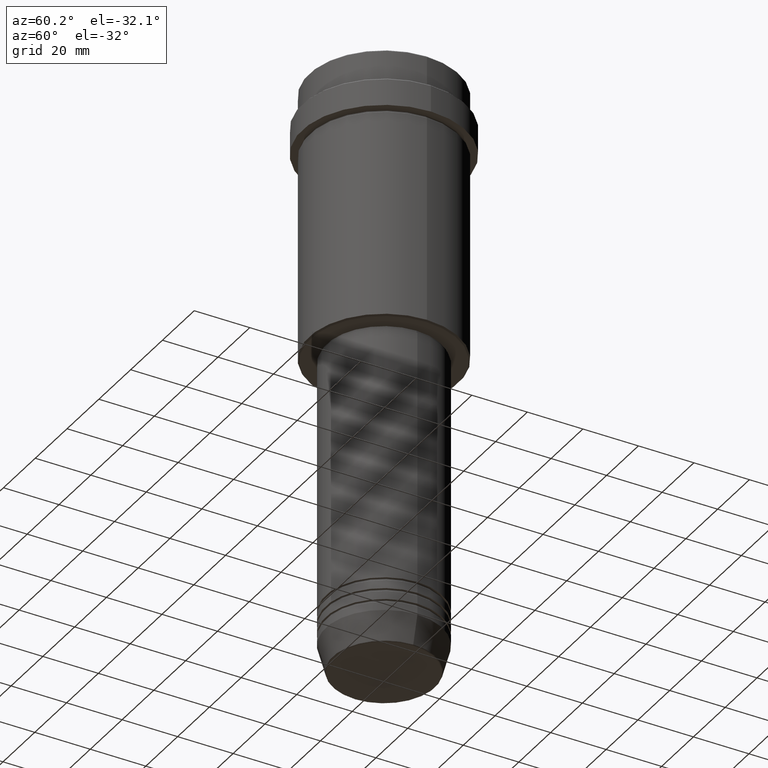
[diagram: clean part render]
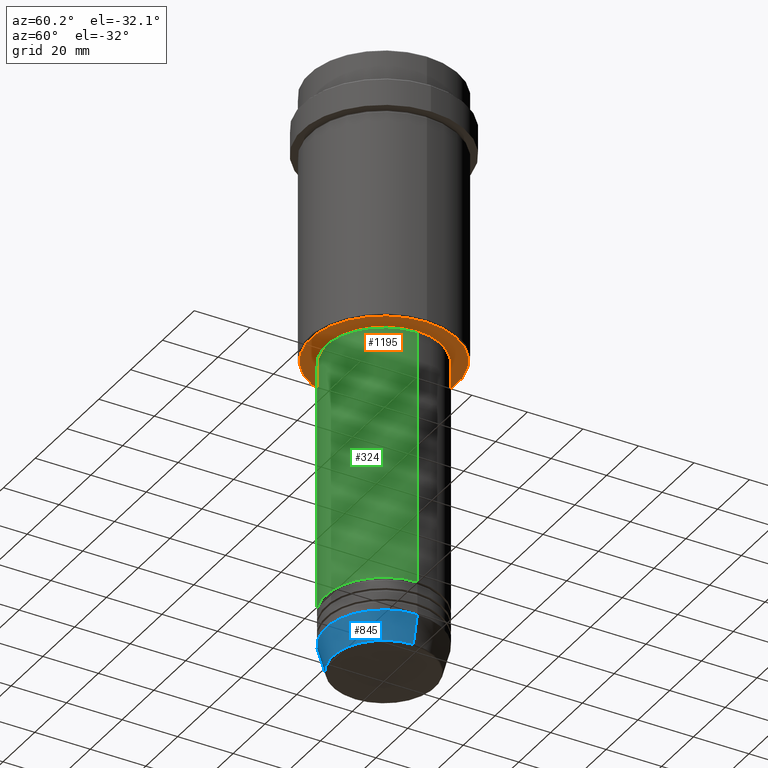
[diagram: same view with three faces highlighted in distinct colors, each labeled with its STEP entity id]
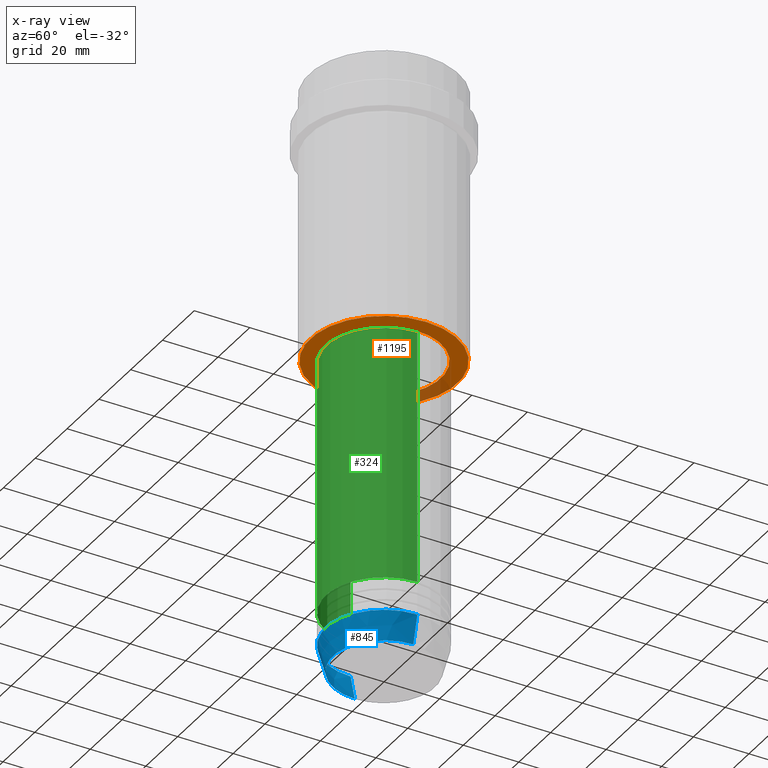
[diagram: x-ray of the same camera — body ghosted, the three highlighted faces saturated]
A machine part, auxiliary view with three faces highlighted in distinct colors.
The next image is the same camera in x-ray (body ghosted, the three faces saturated) — at least one of them is partly hidden behind the body in this view.
Their STEP definitions:

[orange] entity #1195 — the highlighted planar face has unit normal (0, 0, -1).
#64 = EDGE_CURVE ( 'NONE', #1317, #728, #620, .T. ) ;
#104 = CARTESIAN_POINT ( 'NONE',  ( 0.000000000000000000, 0.000000000000000000, -98.00000000000000000 ) ) ;
#107 = VERTEX_POINT ( 'NONE', #694 ) ;
#196 = ORIENTED_EDGE ( 'NONE', *, *, #539, .T. ) ;
#256 = ORIENTED_EDGE ( 'NONE', *, *, #940, .T. ) ;
#257 = PLANE ( 'NONE',  #308 ) ;
#275 = CARTESIAN_POINT ( 'NONE',  ( 26.49999999999996803, 0.000000000000000000, -98.00000000000000000 ) ) ;
#290 = CIRCLE ( 'NONE', #331, 20.49999999999999289 ) ;
#308 = AXIS2_PLACEMENT_3D ( 'NONE', #697, #389, #403 ) ;
#331 = AXIS2_PLACEMENT_3D ( 'NONE', #541, #1305, #424 ) ;
#389 = DIRECTION ( 'NONE',  ( 0.000000000000000000, 0.000000000000000000, -1.000000000000000000 ) ) ;
#403 = DIRECTION ( 'NONE',  ( -1.000000000000000000, 0.000000000000000000, -0.000000000000000000 ) ) ;
#405 = AXIS2_PLACEMENT_3D ( 'NONE', #745, #1181, #654 ) ;
#424 = DIRECTION ( 'NONE',  ( 1.000000000000000000, 0.000000000000000000, 0.000000000000000000 ) ) ;
#539 = EDGE_CURVE ( 'NONE', #728, #1317, #570, .T. ) ;
#540 = CARTESIAN_POINT ( 'NONE',  ( 0.000000000000000000, 0.000000000000000000, -98.00000000000000000 ) ) ;
#541 = CARTESIAN_POINT ( 'NONE',  ( 0.000000000000000000, 0.000000000000000000, -98.00000000000000000 ) ) ;
#570 = CIRCLE ( 'NONE', #1268, 26.49999999999996803 ) ;
#620 = CIRCLE ( 'NONE', #873, 26.49999999999996803 ) ;
#654 = DIRECTION ( 'NONE',  ( 1.000000000000000000, 0.000000000000000000, 0.000000000000000000 ) ) ;
#671 = DIRECTION ( 'NONE',  ( -1.000000000000000000, 0.000000000000000000, 0.000000000000000000 ) ) ;
#694 = CARTESIAN_POINT ( 'NONE',  ( 20.49999999999999289, 0.000000000000000000, -98.00000000000000000 ) ) ;
#697 = CARTESIAN_POINT ( 'NONE',  ( 0.000000000000000000, 27.00000000000000355, -98.00000000000000000 ) ) ;
#715 = FACE_BOUND ( 'NONE', #1408, .T. ) ;
#727 = ORIENTED_EDGE ( 'NONE', *, *, #974, .T. ) ;
#728 = VERTEX_POINT ( 'NONE', #1017 ) ;
#745 = CARTESIAN_POINT ( 'NONE',  ( 0.000000000000000000, 0.000000000000000000, -98.00000000000000000 ) ) ;
#766 = DIRECTION ( 'NONE',  ( 0.000000000000000000, 0.000000000000000000, -1.000000000000000000 ) ) ;
#776 = CIRCLE ( 'NONE', #405, 20.49999999999999289 ) ;
#873 = AXIS2_PLACEMENT_3D ( 'NONE', #540, #766, #671 ) ;
#904 = EDGE_LOOP ( 'NONE', ( #962, #196 ) ) ;
#940 = EDGE_CURVE ( 'NONE', #976, #107, #290, .T. ) ;
#962 = ORIENTED_EDGE ( 'NONE', *, *, #64, .T. ) ;
#974 = EDGE_CURVE ( 'NONE', #107, #976, #776, .T. ) ;
#976 = VERTEX_POINT ( 'NONE', #1093 ) ;
#986 = DIRECTION ( 'NONE',  ( -1.000000000000000000, 0.000000000000000000, 0.000000000000000000 ) ) ;
#1017 = CARTESIAN_POINT ( 'NONE',  ( -26.49999999999996803, 3.275930187719167974E-15, -98.00000000000000000 ) ) ;
#1093 = CARTESIAN_POINT ( 'NONE',  ( -20.49999999999999289, 2.510525938252073298E-15, -98.00000000000000000 ) ) ;
#1181 = DIRECTION ( 'NONE',  ( -0.000000000000000000, -0.000000000000000000, 1.000000000000000000 ) ) ;
#1195 = ADVANCED_FACE ( 'NONE', ( #1244, #715 ), #257, .T. ) ;
#1244 = FACE_OUTER_BOUND ( 'NONE', #904, .T. ) ;
#1268 = AXIS2_PLACEMENT_3D ( 'NONE', #104, #1332, #986 ) ;
#1305 = DIRECTION ( 'NONE',  ( -0.000000000000000000, -0.000000000000000000, 1.000000000000000000 ) ) ;
#1317 = VERTEX_POINT ( 'NONE', #275 ) ;
#1332 = DIRECTION ( 'NONE',  ( 0.000000000000000000, 0.000000000000000000, -1.000000000000000000 ) ) ;
#1408 = EDGE_LOOP ( 'NONE', ( #727, #256 ) ) ;

[blue] entity #845 — the highlighted conical surface has half-angle 15 deg.
#51 = CARTESIAN_POINT ( 'NONE',  ( 18.41980749484382329, 0.000000000000000000, -212.6294095225512706 ) ) ;
#83 = DIRECTION ( 'NONE',  ( 1.000000000000000000, 0.000000000000000000, 0.000000000000000000 ) ) ;
#96 = AXIS2_PLACEMENT_3D ( 'NONE', #827, #1265, #114 ) ;
#114 = DIRECTION ( 'NONE',  ( 1.000000000000000000, 0.000000000000000000, 0.000000000000000000 ) ) ;
#236 = LINE ( 'NONE', #566, #740 ) ;
#238 = VERTEX_POINT ( 'NONE', #51 ) ;
#335 = AXIS2_PLACEMENT_3D ( 'NONE', #742, #748, #83 ) ;
#351 = DIRECTION ( 'NONE',  ( 0.2588190451025205729, 0.000000000000000000, 0.9659258262890683122 ) ) ;
#381 = FACE_OUTER_BOUND ( 'NONE', #982, .T. ) ;
#398 = CARTESIAN_POINT ( 'NONE',  ( 21.00000000000000000, 0.000000000000000000, -203.0000000000000000 ) ) ;
#420 = EDGE_CURVE ( 'NONE', #1192, #423, #1058, .T. ) ;
#423 = VERTEX_POINT ( 'NONE', #398 ) ;
#449 = ORIENTED_EDGE ( 'NONE', *, *, #672, .T. ) ;
#566 = CARTESIAN_POINT ( 'NONE',  ( 21.00000000000000000, 0.000000000000000000, -203.0000000000000000 ) ) ;
#590 = CIRCLE ( 'NONE', #335, 18.41980749484382329 ) ;
#591 = CARTESIAN_POINT ( 'NONE',  ( -18.41980749484382329, 2.413767053578266669E-15, -212.6294095225512706 ) ) ;
#672 = EDGE_CURVE ( 'NONE', #238, #423, #236, .T. ) ;
#710 = CONICAL_SURFACE ( 'NONE', #96, 21.00000000000000000, 0.2617993877991492413 ) ;
#725 = CARTESIAN_POINT ( 'NONE',  ( 0.000000000000000000, 0.000000000000000000, -203.0000000000000000 ) ) ;
#738 = DIRECTION ( 'NONE',  ( -0.000000000000000000, -0.000000000000000000, 1.000000000000000000 ) ) ;
#740 = VECTOR ( 'NONE', #351, 1000.000000000000114 ) ;
#742 = CARTESIAN_POINT ( 'NONE',  ( 0.000000000000000000, 0.000000000000000000, -212.6294095225512706 ) ) ;
#748 = DIRECTION ( 'NONE',  ( -0.000000000000000000, -0.000000000000000000, 1.000000000000000000 ) ) ;
#827 = CARTESIAN_POINT ( 'NONE',  ( 0.000000000000000000, 0.000000000000000000, -203.0000000000000000 ) ) ;
#832 = ORIENTED_EDGE ( 'NONE', *, *, #1411, .T. ) ;
#845 = ADVANCED_FACE ( 'NONE', ( #381 ), #710, .T. ) ;
#936 = ORIENTED_EDGE ( 'NONE', *, *, #420, .F. ) ;
#952 = DIRECTION ( 'NONE',  ( 1.000000000000000000, 0.000000000000000000, 0.000000000000000000 ) ) ;
#982 = EDGE_LOOP ( 'NONE', ( #1245, #832, #449, #936 ) ) ;
#993 = LINE ( 'NONE', #1113, #1025 ) ;
#1025 = VECTOR ( 'NONE', #1227, 1000.000000000000114 ) ;
#1058 = CIRCLE ( 'NONE', #1216, 21.00000000000000000 ) ;
#1084 = EDGE_CURVE ( 'NONE', #1337, #1192, #993, .T. ) ;
#1113 = CARTESIAN_POINT ( 'NONE',  ( -21.00000000000000000, 2.571758278209441661E-15, -203.0000000000000000 ) ) ;
#1144 = CARTESIAN_POINT ( 'NONE',  ( -21.00000000000000000, 2.571758278209441661E-15, -203.0000000000000000 ) ) ;
#1192 = VERTEX_POINT ( 'NONE', #1144 ) ;
#1216 = AXIS2_PLACEMENT_3D ( 'NONE', #725, #738, #952 ) ;
#1227 = DIRECTION ( 'NONE',  ( -0.2588190451025205729, 3.169619151431761860E-17, 0.9659258262890683122 ) ) ;
#1245 = ORIENTED_EDGE ( 'NONE', *, *, #1084, .F. ) ;
#1265 = DIRECTION ( 'NONE',  ( -0.000000000000000000, -0.000000000000000000, 1.000000000000000000 ) ) ;
#1337 = VERTEX_POINT ( 'NONE', #591 ) ;
#1411 = EDGE_CURVE ( 'NONE', #1337, #238, #590, .T. ) ;

[green] entity #324 — the highlighted cylindrical surface (partial cylindrical patch) has radius 21 mm, axis along (-0, -0, 1).
#126 = EDGE_CURVE ( 'NONE', #955, #1145, #1381, .T. ) ;
#139 = DIRECTION ( 'NONE',  ( -0.000000000000000000, -0.000000000000000000, 1.000000000000000000 ) ) ;
#167 = CARTESIAN_POINT ( 'NONE',  ( 21.00000000000000000, 0.000000000000000000, -190.9999999999999147 ) ) ;
#182 = CARTESIAN_POINT ( 'NONE',  ( 0.000000000000000000, 0.000000000000000000, -99.00000000000000000 ) ) ;
#185 = VECTOR ( 'NONE', #726, 1000.000000000000000 ) ;
#193 = DIRECTION ( 'NONE',  ( -0.000000000000000000, -0.000000000000000000, 1.000000000000000000 ) ) ;
#289 = DIRECTION ( 'NONE',  ( 1.000000000000000000, 0.000000000000000000, 0.000000000000000000 ) ) ;
#318 = AXIS2_PLACEMENT_3D ( 'NONE', #1055, #193, #289 ) ;
#324 = ADVANCED_FACE ( 'NONE', ( #363 ), #1242, .T. ) ;
#349 = ORIENTED_EDGE ( 'NONE', *, *, #1310, .T. ) ;
#354 = CARTESIAN_POINT ( 'NONE',  ( 0.000000000000000000, 0.000000000000000000, -190.9999999999999147 ) ) ;
#363 = FACE_OUTER_BOUND ( 'NONE', #950, .T. ) ;
#397 = DIRECTION ( 'NONE',  ( -0.000000000000000000, -0.000000000000000000, 1.000000000000000000 ) ) ;
#400 = VERTEX_POINT ( 'NONE', #1161 ) ;
#427 = ORIENTED_EDGE ( 'NONE', *, *, #429, .F. ) ;
#429 = EDGE_CURVE ( 'NONE', #945, #400, #1239, .T. ) ;
#433 = AXIS2_PLACEMENT_3D ( 'NONE', #182, #1293, #1410 ) ;
#438 = CARTESIAN_POINT ( 'NONE',  ( -21.00000000000000000, 2.571758278209441661E-15, -99.00000000000000000 ) ) ;
#612 = CARTESIAN_POINT ( 'NONE',  ( 21.00000000000000000, 0.000000000000000000, 0.000000000000000000 ) ) ;
#643 = CARTESIAN_POINT ( 'NONE',  ( -21.00000000000000000, 2.571758278209441661E-15, -190.9999999999999147 ) ) ;
#726 = DIRECTION ( 'NONE',  ( -0.000000000000000000, -0.000000000000000000, 1.000000000000000000 ) ) ;
#795 = DIRECTION ( 'NONE',  ( 1.000000000000000000, 0.000000000000000000, 0.000000000000000000 ) ) ;
#849 = CARTESIAN_POINT ( 'NONE',  ( -21.00000000000000000, 2.571758278209441661E-15, 0.000000000000000000 ) ) ;
#933 = ORIENTED_EDGE ( 'NONE', *, *, #126, .T. ) ;
#945 = VERTEX_POINT ( 'NONE', #438 ) ;
#950 = EDGE_LOOP ( 'NONE', ( #1320, #933, #349, #427 ) ) ;
#955 = VERTEX_POINT ( 'NONE', #643 ) ;
#1035 = AXIS2_PLACEMENT_3D ( 'NONE', #354, #139, #795 ) ;
#1055 = CARTESIAN_POINT ( 'NONE',  ( 0.000000000000000000, 0.000000000000000000, 0.000000000000000000 ) ) ;
#1077 = LINE ( 'NONE', #849, #185 ) ;
#1117 = VECTOR ( 'NONE', #397, 1000.000000000000000 ) ;
#1145 = VERTEX_POINT ( 'NONE', #167 ) ;
#1161 = CARTESIAN_POINT ( 'NONE',  ( 21.00000000000000000, 0.000000000000000000, -99.00000000000000000 ) ) ;
#1166 = LINE ( 'NONE', #612, #1117 ) ;
#1239 = CIRCLE ( 'NONE', #433, 21.00000000000000000 ) ;
#1242 = CYLINDRICAL_SURFACE ( 'NONE', #318, 21.00000000000000000 ) ;
#1293 = DIRECTION ( 'NONE',  ( -0.000000000000000000, -0.000000000000000000, 1.000000000000000000 ) ) ;
#1310 = EDGE_CURVE ( 'NONE', #1145, #400, #1166, .T. ) ;
#1320 = ORIENTED_EDGE ( 'NONE', *, *, #1352, .F. ) ;
#1352 = EDGE_CURVE ( 'NONE', #955, #945, #1077, .T. ) ;
#1381 = CIRCLE ( 'NONE', #1035, 21.00000000000000000 ) ;
#1410 = DIRECTION ( 'NONE',  ( 1.000000000000000000, 0.000000000000000000, 0.000000000000000000 ) ) ;